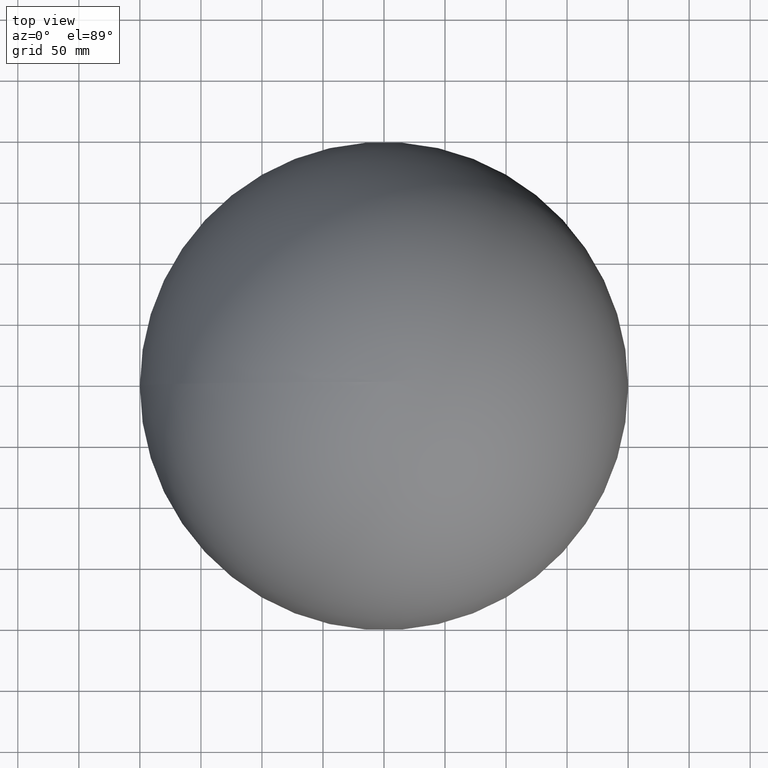
[diagram: clean part render]
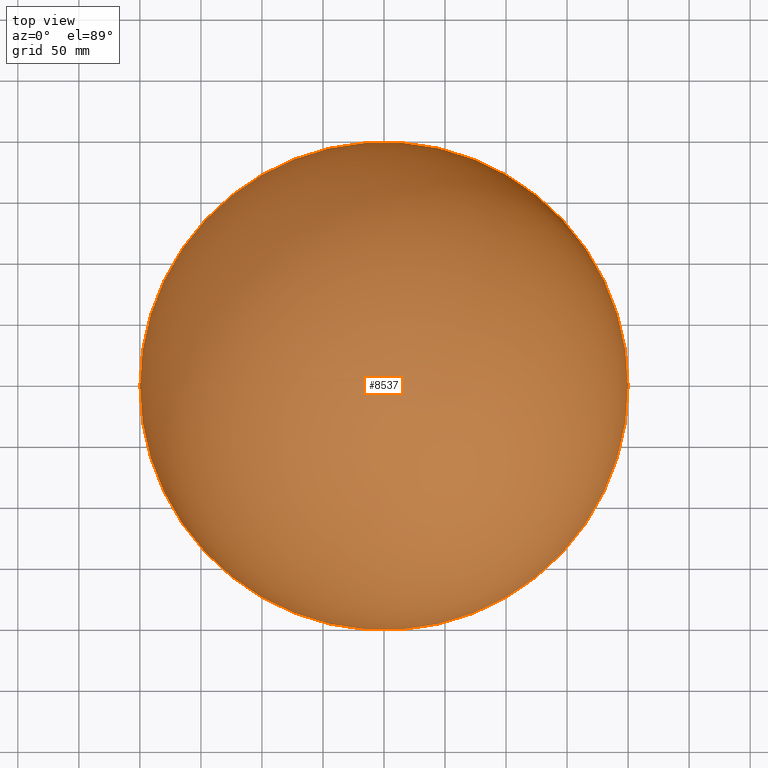
[diagram: same view with one face highlighted and labeled with its STEP entity id]
A machine part, top view. The second image highlights one B-rep face of the part: STEP entity #8537.
In plain terms, the highlighted spherical surface has radius 200 mm.
Its self-contained STEP definition (entity closure, byte-faithful):
#105 = ORIENTED_EDGE ( 'NONE', *, *, #8190, .F. ) ;
#503 = SPHERICAL_SURFACE ( 'NONE', #3642, 200.0000000000000000 ) ;
#514 = CIRCLE ( 'NONE', #3860, 200.0000000000000000 ) ;
#2518 = DIRECTION ( 'NONE',  ( 6.982962677686266711E-15, 0.000000000000000000, -1.000000000000000000 ) ) ;
#2596 = DIRECTION ( 'NONE',  ( -1.000000000000000000, 0.000000000000000000, -6.982962677686266711E-15 ) ) ;
#3259 = VERTEX_POINT ( 'NONE', #10463 ) ;
#3404 = CARTESIAN_POINT ( 'NONE',  ( 0.000000000000000000, 0.000000000000000000, 0.000000000000000000 ) ) ;
#3642 = AXIS2_PLACEMENT_3D ( 'NONE', #7694, #10028, #9315 ) ;
#3817 = FACE_OUTER_BOUND ( 'NONE', #10271, .T. ) ;
#3860 = AXIS2_PLACEMENT_3D ( 'NONE', #3404, #5947, #4251 ) ;
#4251 = DIRECTION ( 'NONE',  ( -1.000000000000000000, 0.000000000000000000, -6.982962677686266711E-15 ) ) ;
#5947 = DIRECTION ( 'NONE',  ( 6.982962677686266711E-15, 0.000000000000000000, -1.000000000000000000 ) ) ;
#6164 = CARTESIAN_POINT ( 'NONE',  ( -200.0000000000000000, 0.000000000000000000, -1.396592535537253342E-12 ) ) ;
#6560 = EDGE_CURVE ( 'NONE', #7594, #3259, #514, .T. ) ;
#7533 = CARTESIAN_POINT ( 'NONE',  ( 0.000000000000000000, 0.000000000000000000, 0.000000000000000000 ) ) ;
#7594 = VERTEX_POINT ( 'NONE', #6164 ) ;
#7694 = CARTESIAN_POINT ( 'NONE',  ( 0.000000000000000000, 0.000000000000000000, 0.000000000000000000 ) ) ;
#8190 = EDGE_CURVE ( 'NONE', #3259, #7594, #8617, .T. ) ;
#8261 = AXIS2_PLACEMENT_3D ( 'NONE', #7533, #2518, #2596 ) ;
#8537 = ADVANCED_FACE ( 'NONE', ( #3817 ), #503, .T. ) ;
#8617 = CIRCLE ( 'NONE', #8261, 200.0000000000000000 ) ;
#9315 = DIRECTION ( 'NONE',  ( -1.000000000000000000, 0.000000000000000000, -6.982962677686266711E-15 ) ) ;
#10028 = DIRECTION ( 'NONE',  ( -6.982962677686266711E-15, 0.000000000000000000, 1.000000000000000000 ) ) ;
#10271 = EDGE_LOOP ( 'NONE', ( #10319, #105 ) ) ;
#10319 = ORIENTED_EDGE ( 'NONE', *, *, #6560, .F. ) ;
#10463 = CARTESIAN_POINT ( 'NONE',  ( 200.0000000000000000, 2.449293598294706434E-14, 1.396592535537253342E-12 ) ) ;